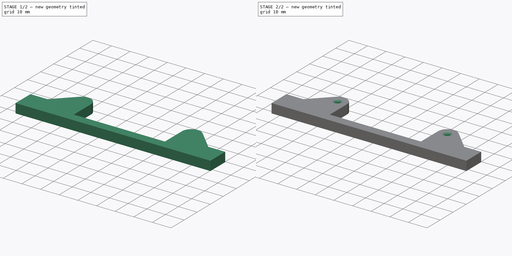
[diagram: build sequence overview — one tinted view per stage of 2, left to right]
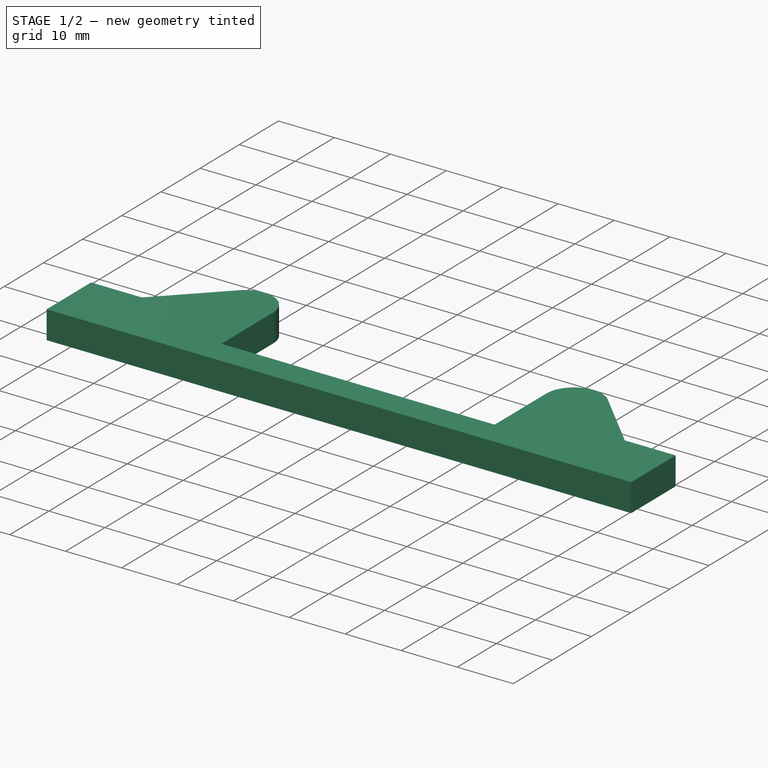
[diagram: stage 1 of 2 — iso view after this stage's code; geometry added in this stage tinted green]
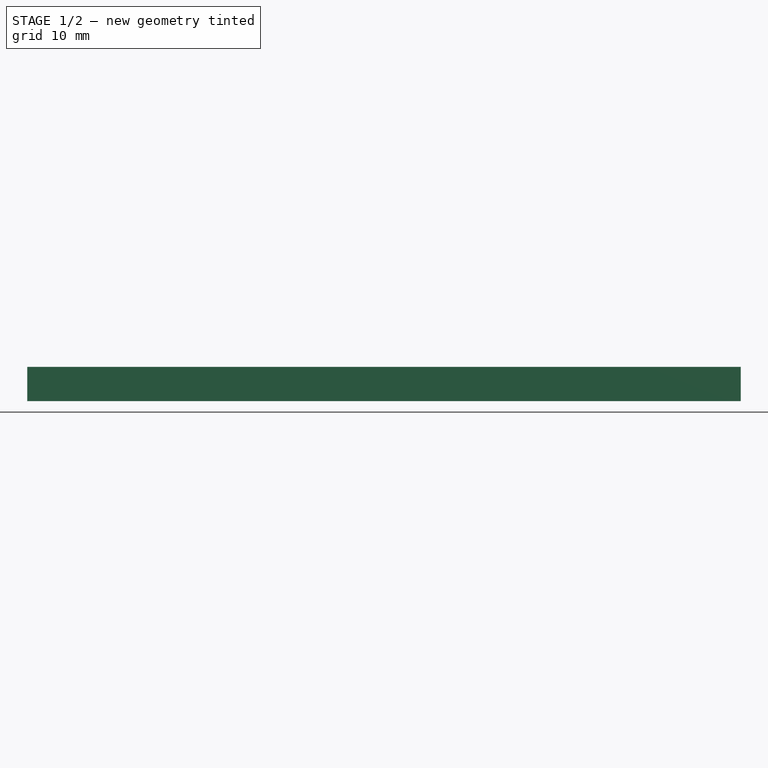
[diagram: stage 1 of 2 — front view after this stage's code; geometry added in this stage tinted green]
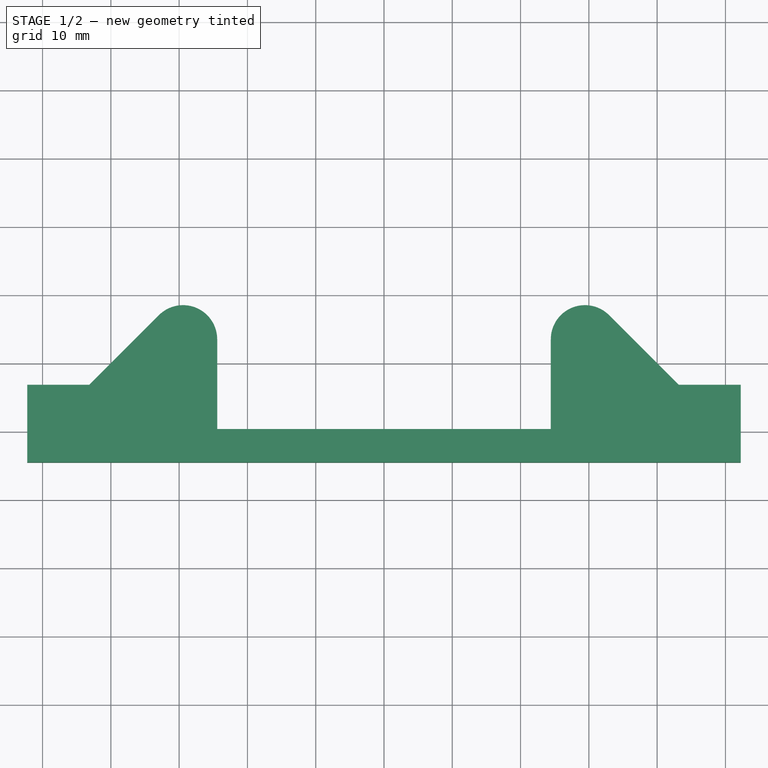
[diagram: stage 1 of 2 — top view after this stage's code; geometry added in this stage tinted green]
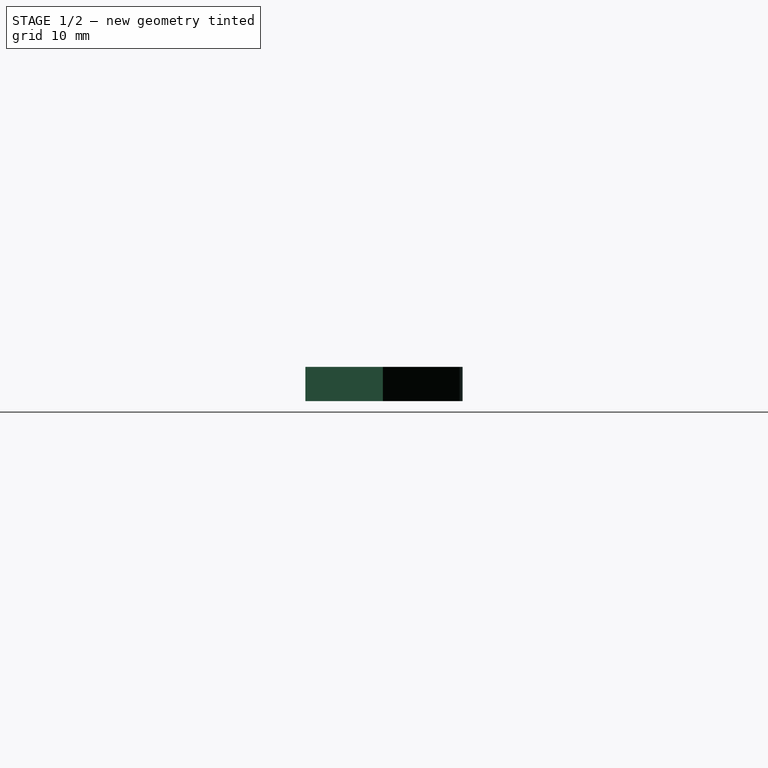
[diagram: stage 1 of 2 — right view after this stage's code; geometry added in this stage tinted green]
FCSTD DOCUMENT  (FreeCAD 0.20R29603 (Git))
Label: FrontBumper
License: All rights reserved
LicenseURL: http://en.wikipedia.org/wiki/All_rights_reserved
objects: Sketcher::SketchObject×7, PartDesign::Line×2, PartDesign::CoordinateSystem×1, PartDesign::Pad×1, PartDesign::Pocket×1, PartDesign::Hole×1, PartDesign::Body×1
note: 17 computed .brp shape members not serialized (recipe doc carries the construction recipe); baked Part::Feature solids carry a one-line shape summary decoded from their .brp

FEATURE [PartDesign::CoordinateSystem] LCS_0
  AttacherType = Attacher::AttachEngine3D
  MapMode = 2
  Support = -> [X_Axis]
FEATURE [Sketcher::SketchObject] Sketch001  label="pcb_outline"
  FullyConstrained = true
  MapMode = 5
  sketch-geometry (4):
    g0: LineSegment StartX=-40.5 StartY=46.5 StartZ=0 EndX=40.5 EndY=46.5 EndZ=0
    g1: LineSegment StartX=40.5 StartY=46.5 StartZ=0 EndX=40.5 EndY=-46.5 EndZ=0
    g2: LineSegment StartX=40.5 StartY=-46.5 StartZ=0 EndX=-40.5 EndY=-46.5 EndZ=0
    g3: LineSegment StartX=-40.5 StartY=-46.5 StartZ=0 EndX=-40.5 EndY=46.5 EndZ=0
  constraints (10):
    c: Coincident(g0,g1)
    c: Coincident(g1,g2)
    c: Coincident(g2,g3)
    c: Coincident(g3,g0)
    c: Horizontal(g0)
    c: Vertical(g1)
    c: Symmetric(g2,g1,g-2)
    c: Symmetric(g0,g2,g-1)
    c: DistanceX(g0,g0) = 81
    c: DistanceY(g1,g1) = 93
FEATURE [Sketcher::SketchObject] Sketch002  label="motor_mount_holes"
  FullyConstrained = true
  MapMode = 5
  sketch-geometry (8):
    g0: Circle CenterX=-35.75 CenterY=41.8 CenterZ=0 NormalX=0 NormalY=0 NormalZ=1 AngleXU=0 Radius=1.15
    g1: Circle CenterX=-35.75 CenterY=23.8 CenterZ=0 NormalX=0 NormalY=0 NormalZ=1 AngleXU=0 Radius=1.15
    g2: Circle CenterX=35.75 CenterY=41.8 CenterZ=0 NormalX=0 NormalY=0 NormalZ=1 AngleXU=0 Radius=1.15
    g3: Circle CenterX=35.75 CenterY=23.8 CenterZ=0 NormalX=0 NormalY=0 NormalZ=1 AngleXU=0 Radius=1.15
    g4: Circle CenterX=-35.75 CenterY=-10.8 CenterZ=0 NormalX=0 NormalY=0 NormalZ=1 AngleXU=0 Radius=1.15
    g5: Circle CenterX=-35.75 CenterY=-28.8 CenterZ=0 NormalX=0 NormalY=0 NormalZ=1 AngleXU=0 Radius=1.15
    g6: Circle CenterX=35.75 CenterY=-28.8 CenterZ=0 NormalX=0 NormalY=0 NormalZ=1 AngleXU=0 Radius=1.15
    g7: Circle CenterX=35.75 CenterY=-10.8 CenterZ=0 NormalX=0 NormalY=0 NormalZ=1 AngleXU=0 Radius=1.15
  constraints (8):
    c: Block(g0)
    c: Block(g2)
    c: Block(g1)
    c: Block(g3)
    c: Block(g4)
    c: Block(g5)
    c: Block(g6)
    c: Block(g7)
FEATURE [Sketcher::SketchObject] Sketch003  label="body_mount_holes"
  FullyConstrained = false
  MapMode = 5
  sketch-geometry (4):
    g0: Circle CenterX=-5.5 CenterY=41.5 CenterZ=0 NormalX=0 NormalY=0 NormalZ=1 AngleXU=0 Radius=3.25
    g1: Circle CenterX=5.5 CenterY=41.5 CenterZ=0 NormalX=0 NormalY=0 NormalZ=1 AngleXU=0 Radius=3.25
    g2: Circle CenterX=-29.4289 CenterY=-36.5 CenterZ=0 NormalX=0 NormalY=0 NormalZ=1 AngleXU=0 Radius=3.25
    g3: Circle CenterX=29.4289 CenterY=-36.5 CenterZ=0 NormalX=0 NormalY=0 NormalZ=1 AngleXU=0 Radius=3.25
  constraints (7):
    c: Symmetric(g0,g1,g-2)
    c: Symmetric(g2,g3,g-2)
    c: Equal(g0,g1)
    c: Equal(g0,g2)
    c: Equal(g0,g3)
    c: Diameter(g0) = 6.5
    c: Distance(g0,g-2) = 5.5
FEATURE [Sketcher::SketchObject] Sketch_1  label="front_bumper_outline"
  ExternalGeometry = -> [Sketch003]
  FullyConstrained = false
  sketch-geometry (12):
    g0: ArcOfCircle CenterX=-29.4289 CenterY=-36.5 CenterZ=0 NormalX=0 NormalY=0 NormalZ=1 AngleXU=0 Radius=5 StartAngle=0 EndAngle=2.35619
    g1: ArcOfCircle CenterX=29.4289 CenterY=-36.5 CenterZ=0 NormalX=0 NormalY=0 NormalZ=1 AngleXU=0 Radius=5 StartAngle=0.785398 EndAngle=3.14159
    g2: LineSegment StartX=-24.4289 StartY=-36.5 StartZ=0 EndX=-24.4289 EndY=-49.6346 EndZ=0
    g3: LineSegment StartX=-24.4289 StartY=-49.6346 StartZ=0 EndX=24.4289 EndY=-49.6346 EndZ=0
    g4: LineSegment StartX=24.4289 StartY=-36.5 StartZ=0 EndX=24.4289 EndY=-49.6346 EndZ=0
    g5: LineSegment StartX=-43.1646 StartY=-43.1646 StartZ=0 EndX=-32.9645 EndY=-32.9645 EndZ=0
    g6: LineSegment StartX=-43.1646 StartY=-43.1646 StartZ=0 EndX=-52.2479 EndY=-43.1646 EndZ=0
    g7: LineSegment StartX=-52.2479 StartY=-43.1646 StartZ=0 EndX=-52.2479 EndY=-54.5128 EndZ=0
    g8: LineSegment StartX=-52.2479 StartY=-54.5128 StartZ=0 EndX=52.2479 EndY=-54.5128 EndZ=0
    g9: LineSegment StartX=32.9645 StartY=-32.9645 StartZ=0 EndX=43.1646 EndY=-43.1646 EndZ=0
    g10: LineSegment StartX=43.1646 StartY=-43.1646 StartZ=0 EndX=52.2479 EndY=-43.1646 EndZ=0
    g11: LineSegment StartX=52.2479 StartY=-43.1646 StartZ=0 EndX=52.2479 EndY=-54.5128 EndZ=0
  constraints (30):
    c: Coincident(g0,g-3)
    c: Coincident(g1,g-4)
    c: Horizontal(g0,g0)
    c: Horizontal(g1,g1)
    c: Coincident(g3,g2)
    c: Horizontal(g3)
    c: Coincident(g4,g1)
    c: Coincident(g4,g3)
    c: Vertical(g4)
    c: Tangent(g2,g0) = 1.5708
    c: Angle(g5) = 0.785398
    c: Tangent(g5,g0) = 1.5708
    c: Coincident(g6,g5)
    c: Horizontal(g6)
    c: Coincident(g7,g6)
    c: Vertical(g7)
    c: Coincident(g8,g7)
    c: Horizontal(g8)
    c: Coincident(g9,g1)
    c: Coincident(g10,g9)
    c: Horizontal(g10)
    c: Coincident(g11,g10)
    c: Coincident(g11,g8)
    c: Vertical(g11)
    c: Horizontal(g0,g1)
    c: Equal(g0,g1)
    c: Radius(g0) = 5
    c: Equal(g5,g9)
    c: Perpendicular(g9,g5)
    c: Equal(g6,g10)
FEATURE [PartDesign::Pad] Pad  label="front_bumper_main_pad"
  Direction = (0,0,1)
  Length = 5
  Length2 = 10
  Profile = -> Sketch_1
  ReferenceAxis = -> Sketch_1 [N_Axis]
  Type = 0
FEATURE [Sketcher::SketchObject] Sketch  label="bottom_pocket_sketch"
  ExternalGeometry = -> [Sketch003]
  FullyConstrained = true
  MapMode = 5
  Placement = pos=(0,0,0) rot=(1,0,0;3.14159rad)
  Support = -> [Pad]
  sketch-geometry (2):
    g0: Circle CenterX=-29.4289 CenterY=36.5 CenterZ=0 NormalX=0 NormalY=0 NormalZ=1 AngleXU=0 Radius=3
    g1: Circle CenterX=29.4289 CenterY=36.5 CenterZ=0 NormalX=0 NormalY=0 NormalZ=1 AngleXU=0 Radius=3
  constraints (4):
    c: Coincident(g0,g-3)
    c: Coincident(g1,g-4)
    c: Equal(g0,g1)
    c: Diameter(g0) = 6
FEATURE [PartDesign::Pocket] Pocket  label="bottom_pocket"
  BaseFeature = -> Pad
  Direction = (0,0,1)
  Length = 3
  Length2 = 5
  Profile = -> Sketch
  ReferenceAxis = -> Sketch [N_Axis]
  Type = 0
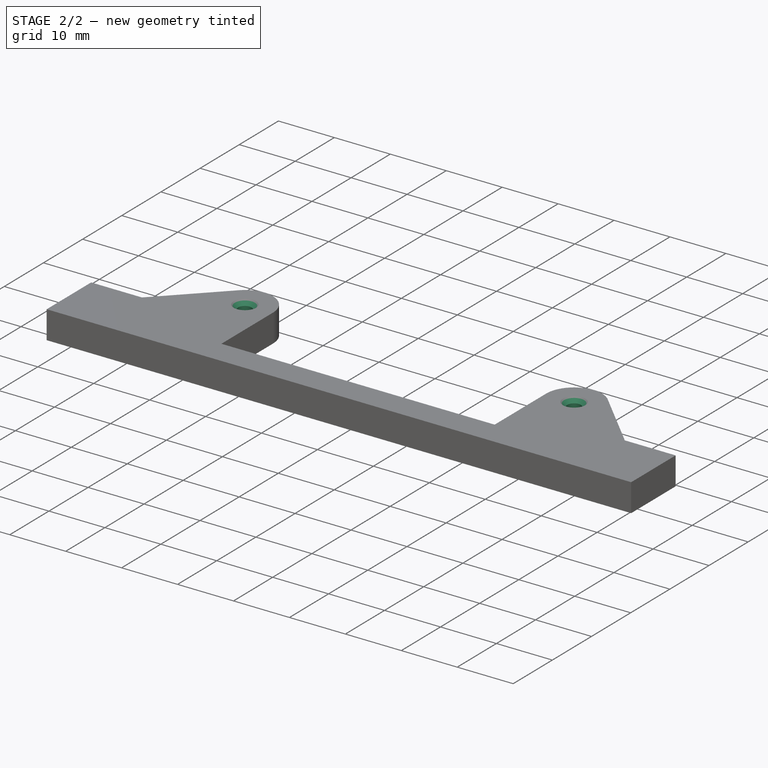
[diagram: stage 2 of 2 — iso view after this stage's code; geometry added in this stage tinted green]
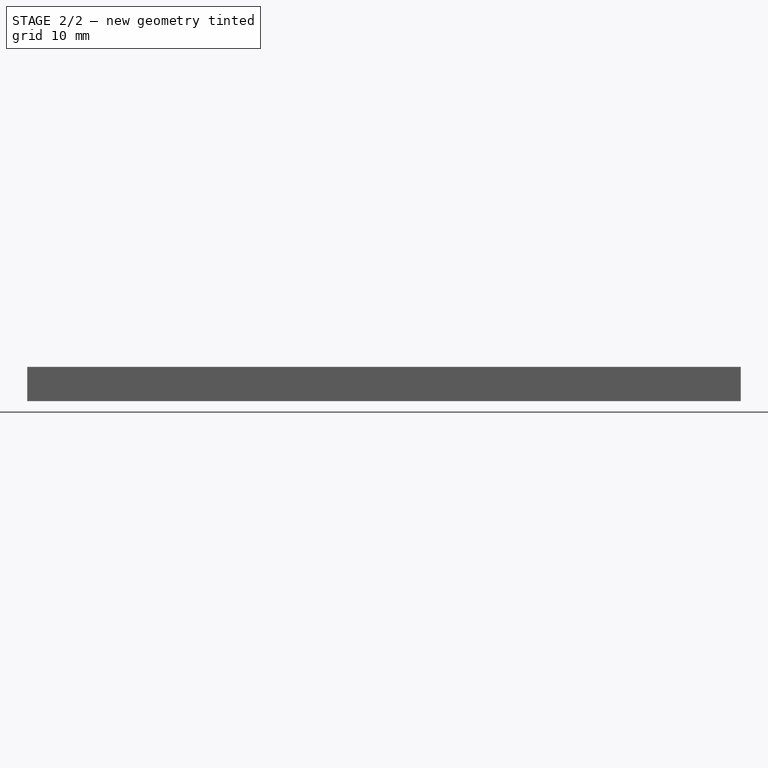
[diagram: stage 2 of 2 — front view after this stage's code; geometry added in this stage tinted green]
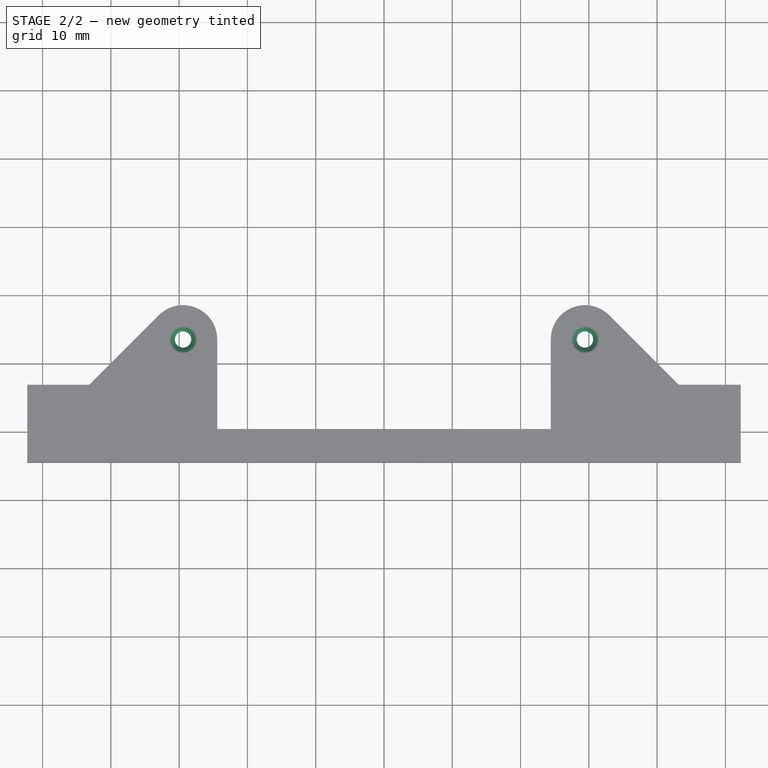
[diagram: stage 2 of 2 — top view after this stage's code; geometry added in this stage tinted green]
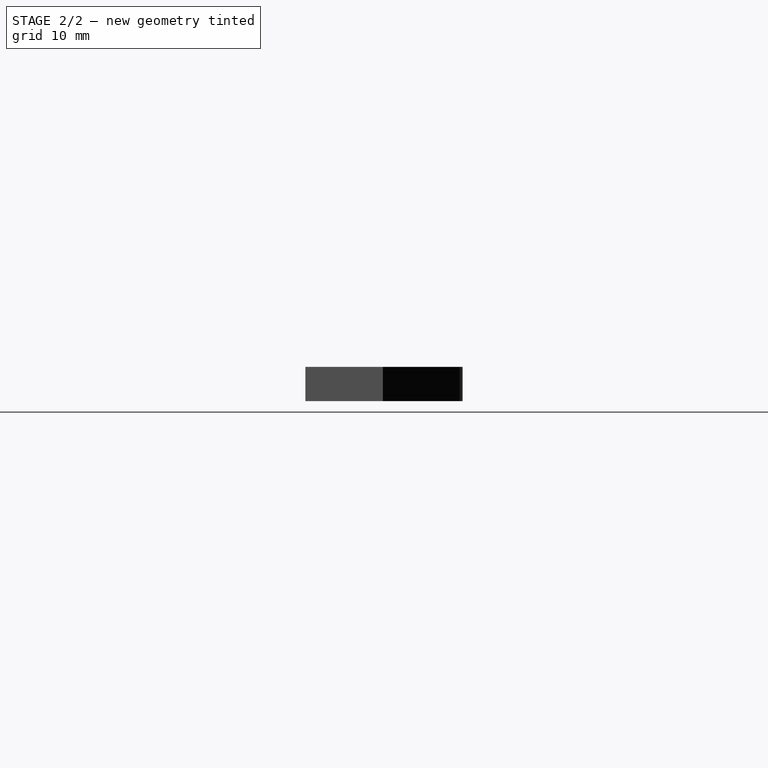
[diagram: stage 2 of 2 — right view after this stage's code; geometry added in this stage tinted green]
FEATURE [Sketcher::SketchObject] Sketch004  label="top_hole_sketch"
  ExternalGeometry = -> [Sketch003]
  FullyConstrained = true
  MapMode = 5
  Placement = pos=(0,0,5) rot=(0,0,1;0rad)
  Support = -> [Pocket]
  expr: Constraints[3] = Sketch.Constraints[3]
  sketch-geometry (2):
    g0: Circle CenterX=-29.4289 CenterY=-36.5 CenterZ=0 NormalX=0 NormalY=0 NormalZ=1 AngleXU=0 Radius=3
    g1: Circle CenterX=29.4289 CenterY=-36.5 CenterZ=0 NormalX=0 NormalY=0 NormalZ=1 AngleXU=0 Radius=3
  constraints (4):
    c: Coincident(g0,g-3)
    c: Coincident(g1,g-4)
    c: Equal(g0,g1)
    c: Diameter(g0) = 6
FEATURE [PartDesign::Hole] Hole  label="top_hole"
  BaseFeature = -> Pocket
  CustomThreadClearance = 0
  Depth = 216.369
  DepthType = 1
  Diameter = 2.4
  DrillForDepth = false
  DrillPoint = 1
  DrillPointAngle = 118
  HoleCutCountersinkAngle = 90
  HoleCutCustomValues = false
  HoleCutDepth = 0
  HoleCutDiameter = 4
  HoleCutType = 2
  ModelThread = false
  Profile = -> Sketch004
  Tapered = false
  TaperedAngle = 90
  ThreadClass = 0
  ThreadDepth = 216.369
  ThreadDepthType = 0
  ThreadDirection = 0
  ThreadFit = 0
  ThreadSize = 6
  ThreadType = 1
  Threaded = false
  UseCustomThreadClearance = false
FEATURE [PartDesign::Line] HoleAxis_1  label="bottom_hole"
  AttacherType = Attacher::AttachEngineLine
  Length = 8.4544
  MapMode = 19
  Placement = pos=(-29.4289,-36.5,0) rot=(-1,0,0;3.14159rad)
  ResizeMode = 1
  Support = -> [Hole]
FEATURE [PartDesign::Line] HoleAxis_2  label="bottom_right_hole"
  AttacherType = Attacher::AttachEngineLine
  Length = 8.4544
  MapMode = 19
  Placement = pos=(29.4289,-36.5,0) rot=(-1,0,0;3.14159rad)
  ResizeMode = 1
  Support = -> [Hole]
FEATURE [Sketcher::SketchObject] Sketch005
  FullyConstrained = true
  MapMode = 5
  Placement = pos=(0,0,5) rot=(0,0,1;0rad)
  Support = -> [Hole]
FEATURE [PartDesign::Body] Body  label="FrontBumperBody"
  Group = -> [LCS_0,Sketch001,Sketch002,Sketch003,Sketch_1,Pad,Sketch,Pocket,Sketch004,Hole,HoleAxis_1,HoleAxis_2,Sketch005]
  Origin = -> Origin
  Tip = -> Hole
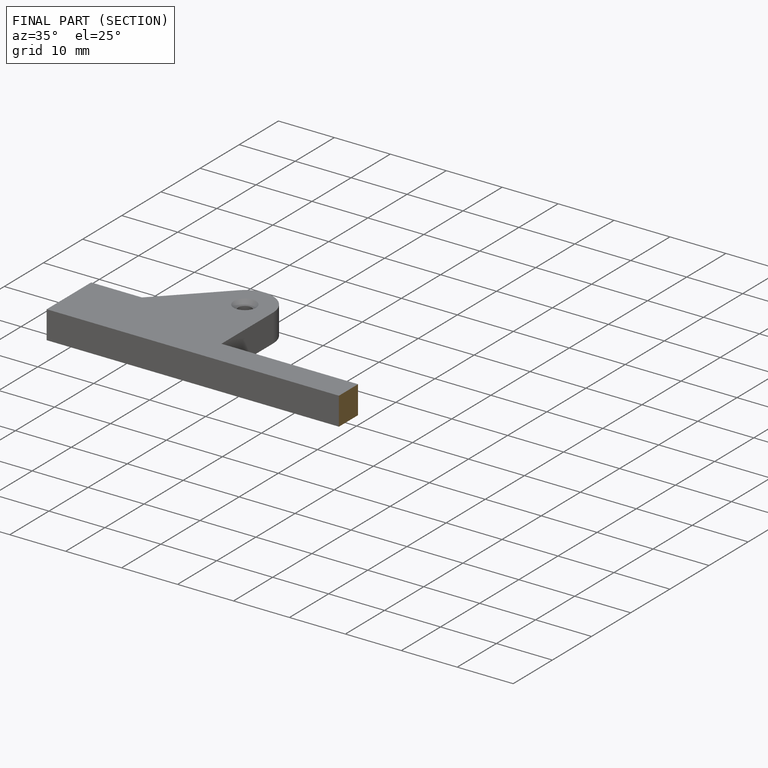
[diagram: finished part — half-section view (interior)]
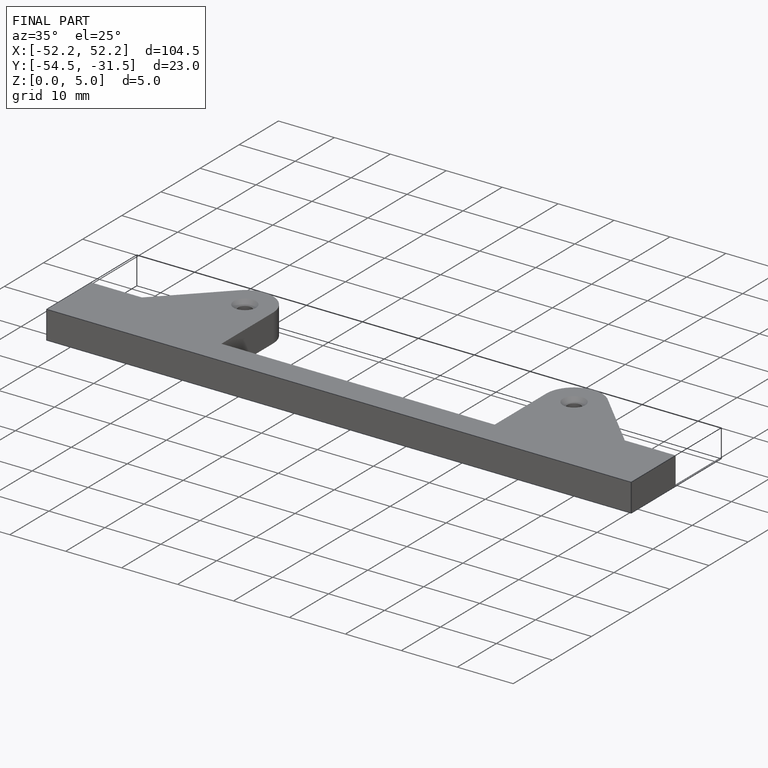
[diagram: finished part — iso view with bounding-box wireframe]
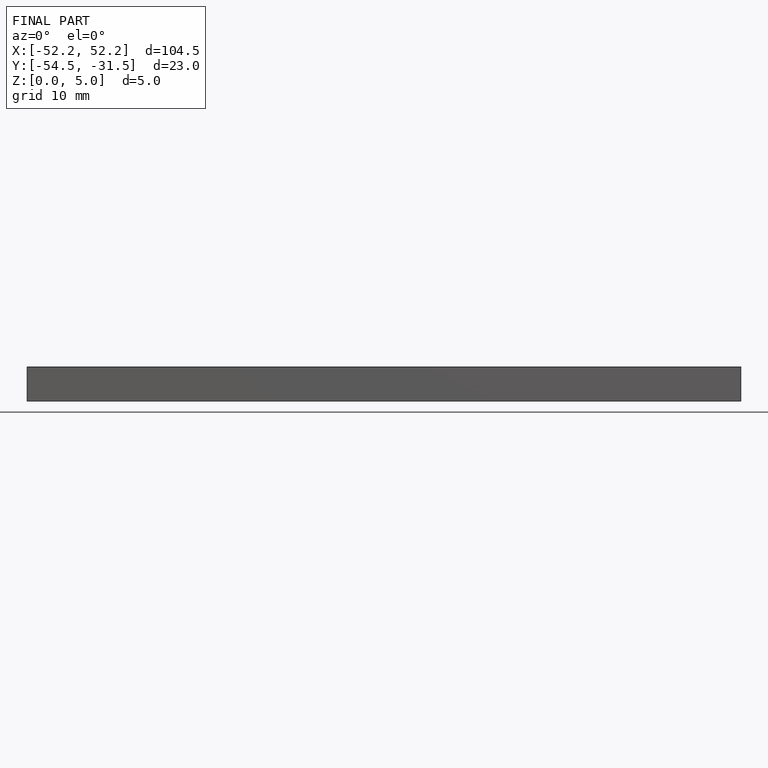
[diagram: finished part — front view with bounding-box wireframe]
